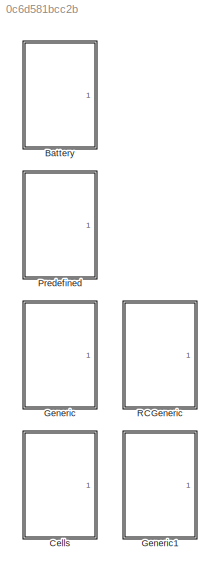
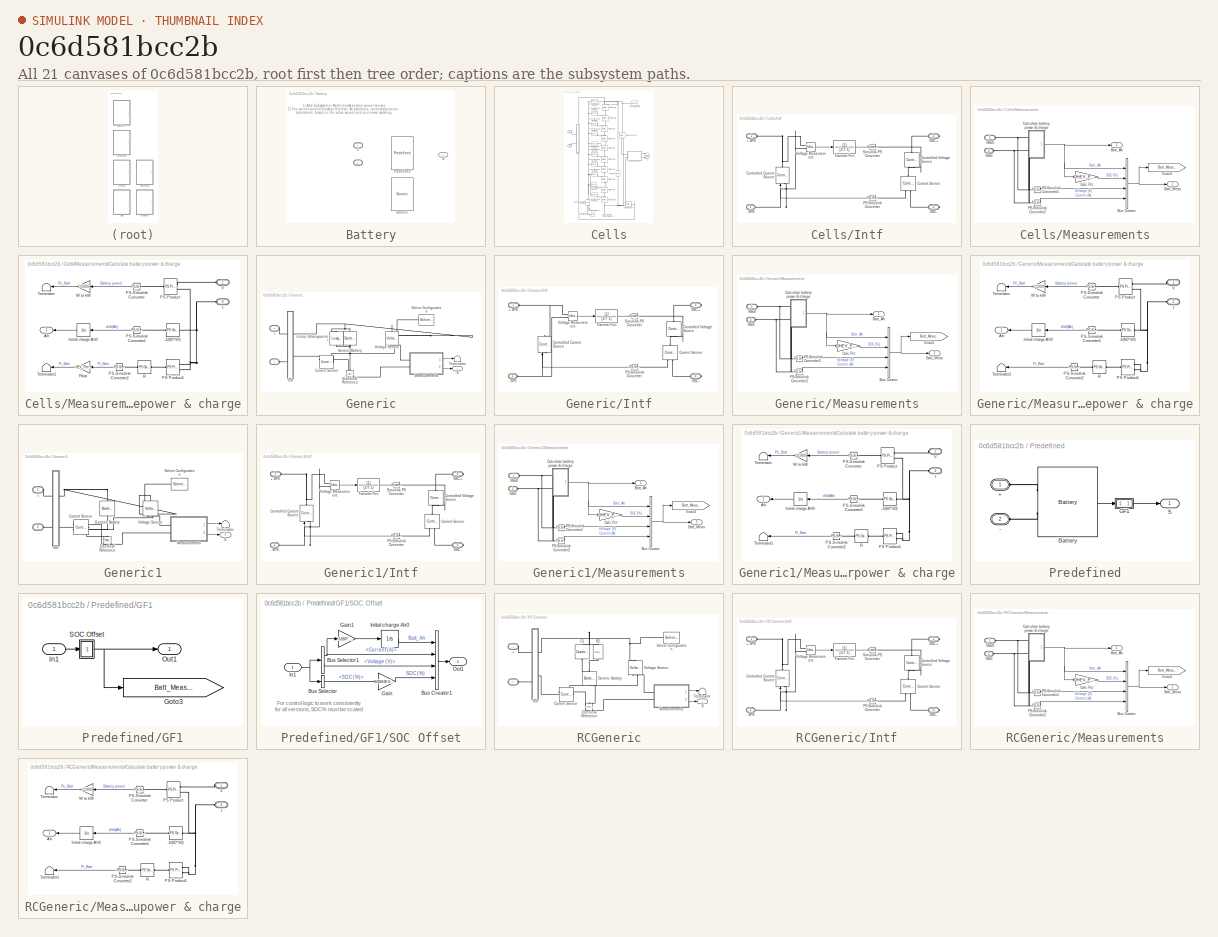
[diagram: thumbnail index - all 21 canvases of the model, root first then tree order]
MODEL slx_0c6d581bcc2b
KIND library
CONFIG AbsTol = auto
CONFIG EnableMultiTasking = on
CONFIG FixedStep = auto
CONFIG MaxStep = auto
CONFIG MinStep = auto
CONFIG RelTol = 1e-3
CONFIG SampleTimeConstraint = Unconstrained
CONFIG Solver = ode45
CONFIG SolverName = ode45
CONFIG StartTime = 0.0
CONFIG StopTime = 0.1
BLOCK [SubSystem] Battery
  LabelModeActiveChoice = Predefined
  Ports = [0, 1, 0, 0, 0, 2]
  RequestExecContextInheritance = off
  Variant = on
  VariantControlMode = Label
BLOCK [PMIOPort] Battery/+
  Side = Left
  Tag = PMCPort
BLOCK [PMIOPort] Battery/-
  Port = 2
  Side = Left
  Tag = PMCPort
BLOCK [Reference] Battery/Generic  REF=$bdroot/Generic
  Ports = [0, 1, 0, 0, 0, 2]
  SourceBlock = $bdroot/Generic
BLOCK [Reference] Battery/Predefined  REF=$bdroot/Predefined
  Ports = [0, 1, 0, 0, 0, 2]
  SourceBlock = $bdroot/Predefined
BLOCK [Outport] Battery/S
  VectorParamsAs1DForOutWhenUnconnected = off
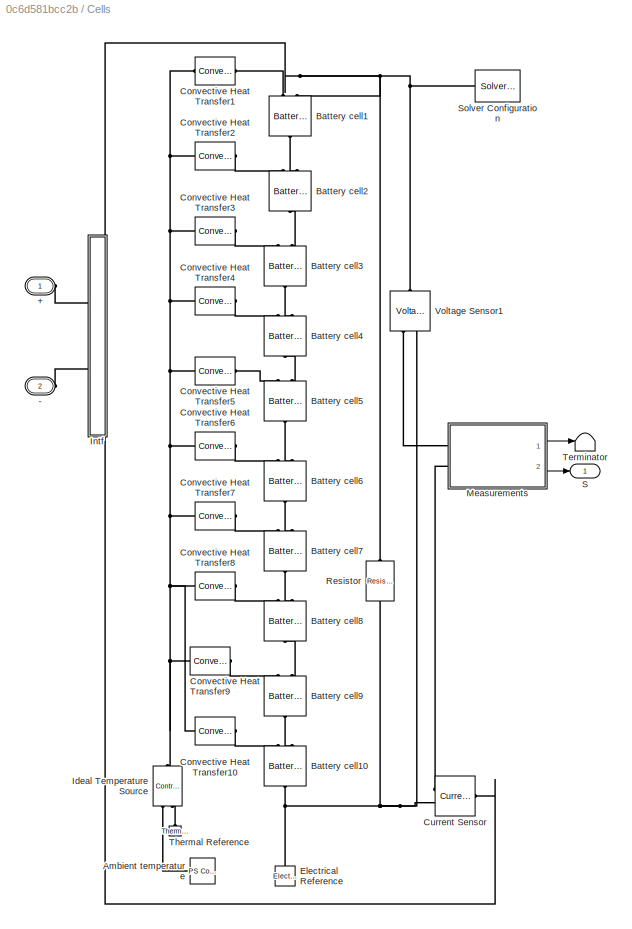
BLOCK [SubSystem] Cells
  Ports = [0, 1, 0, 0, 0, 2]
  RequestExecContextInheritance = off
BLOCK [PMIOPort] Cells/+
  Side = Left
  Tag = PMCPort
BLOCK [PMIOPort] Cells/-
  Port = 2
  Side = Left
  Tag = PMCPort
BLOCK [Reference] Cells/Ambient temperature  REF=fl_lib/Physical Signals/Sources/PS Constant
  Ports = [0, 0, 0, 0, 0, 0, 1]
  SourceBlock = fl_lib/Physical Signals/Sources/PS Constant
  SourceProductBaseCode = SS
  SourceType = PS Constant
BLOCK [Reference] Cells/Battery cell1  REF=Battery_Cell_Det/Battery
cell1
  NameLocation = right
  Ports = [0, 0, 0, 0, 0, 2, 1]
  SourceBlock = Battery_Cell_Det/Battery\ncell1
BLOCK [Reference] Cells/Battery cell10  REF=Battery_Cell_Det/Battery
cell1
  NameLocation = right
  Ports = [0, 0, 0, 0, 0, 2, 1]
  SourceBlock = Battery_Cell_Det/Battery\ncell1
BLOCK [Reference] Cells/Battery cell2  REF=Battery_Cell_Det/Battery
cell1
  NameLocation = right
  Ports = [0, 0, 0, 0, 0, 2, 1]
  SourceBlock = Battery_Cell_Det/Battery\ncell1
BLOCK [Reference] Cells/Battery cell3  REF=Battery_Cell_Det/Battery
cell1
  NameLocation = right
  Ports = [0, 0, 0, 0, 0, 2, 1]
  SourceBlock = Battery_Cell_Det/Battery\ncell1
BLOCK [Reference] Cells/Battery cell4  REF=Battery_Cell_Det/Battery
cell1
  NameLocation = right
  Ports = [0, 0, 0, 0, 0, 2, 1]
  SourceBlock = Battery_Cell_Det/Battery\ncell1
BLOCK [Reference] Cells/Battery cell5  REF=Battery_Cell_Det/Battery
cell1
  NameLocation = right
  Ports = [0, 0, 0, 0, 0, 2, 1]
  SourceBlock = Battery_Cell_Det/Battery\ncell1
BLOCK [Reference] Cells/Battery cell6  REF=Battery_Cell_Det/Battery
cell1
  NameLocation = right
  Ports = [0, 0, 0, 0, 0, 2, 1]
  SourceBlock = Battery_Cell_Det/Battery\ncell1
BLOCK [Reference] Cells/Battery cell7  REF=Battery_Cell_Det/Battery
cell1
  NameLocation = right
  Ports = [0, 0, 0, 0, 0, 2, 1]
  SourceBlock = Battery_Cell_Det/Battery\ncell1
BLOCK [Reference] Cells/Battery cell8  REF=Battery_Cell_Det/Battery
cell1
  NameLocation = right
  Ports = [0, 0, 0, 0, 0, 2, 1]
  SourceBlock = Battery_Cell_Det/Battery\ncell1
BLOCK [Reference] Cells/Battery cell9  REF=Battery_Cell_Det/Battery
cell1
  NameLocation = right
  Ports = [0, 0, 0, 0, 0, 2, 1]
  SourceBlock = Battery_Cell_Det/Battery\ncell1
BLOCK [Reference] Cells/Convective Heat Transfer1  REF=fl_lib/Thermal/Thermal Elements/Convective Heat
Transfer
  NameLocation = top
  Ports = [0, 0, 0, 0, 0, 1, 1]
  SourceBlock = fl_lib/Thermal/Thermal Elements/Convective Heat\nTransfer
  SourceProductBaseCode = SS
  SourceType = Convective Heat\nTransfer
BLOCK [Reference] Cells/Convective Heat Transfer10  REF=fl_lib/Thermal/Thermal Elements/Convective Heat
Transfer
  NameLocation = top
  Ports = [0, 0, 0, 0, 0, 1, 1]
  SourceBlock = fl_lib/Thermal/Thermal Elements/Convective Heat\nTransfer
  SourceProductBaseCode = SS
  SourceType = Convective Heat\nTransfer
BLOCK [Reference] Cells/Convective Heat Transfer2  REF=fl_lib/Thermal/Thermal Elements/Convective Heat
Transfer
  NameLocation = top
  Ports = [0, 0, 0, 0, 0, 1, 1]
  SourceBlock = fl_lib/Thermal/Thermal Elements/Convective Heat\nTransfer
  SourceProductBaseCode = SS
  SourceType = Convective Heat\nTransfer
BLOCK [Reference] Cells/Convective Heat Transfer3  REF=fl_lib/Thermal/Thermal Elements/Convective Heat
Transfer
  NameLocation = top
  Ports = [0, 0, 0, 0, 0, 1, 1]
  SourceBlock = fl_lib/Thermal/Thermal Elements/Convective Heat\nTransfer
  SourceProductBaseCode = SS
  SourceType = Convective Heat\nTransfer
BLOCK [Reference] Cells/Convective Heat Transfer4  REF=fl_lib/Thermal/Thermal Elements/Convective Heat
Transfer
  NameLocation = top
  Ports = [0, 0, 0, 0, 0, 1, 1]
  SourceBlock = fl_lib/Thermal/Thermal Elements/Convective Heat\nTransfer
  SourceProductBaseCode = SS
  SourceType = Convective Heat\nTransfer
BLOCK [Reference] Cells/Convective Heat Transfer5  REF=fl_lib/Thermal/Thermal Elements/Convective Heat
Transfer
  NameLocation = top
  Ports = [0, 0, 0, 0, 0, 1, 1]
  SourceBlock = fl_lib/Thermal/Thermal Elements/Convective Heat\nTransfer
  SourceProductBaseCode = SS
  SourceType = Convective Heat\nTransfer
BLOCK [Reference] Cells/Convective Heat Transfer6  REF=fl_lib/Thermal/Thermal Elements/Convective Heat
Transfer
  NameLocation = top
  Ports = [0, 0, 0, 0, 0, 1, 1]
  SourceBlock = fl_lib/Thermal/Thermal Elements/Convective Heat\nTransfer
  SourceProductBaseCode = SS
  SourceType = Convective Heat\nTransfer
BLOCK [Reference] Cells/Convective Heat Transfer7  REF=fl_lib/Thermal/Thermal Elements/Convective Heat
Transfer
  NameLocation = top
  Ports = [0, 0, 0, 0, 0, 1, 1]
  SourceBlock = fl_lib/Thermal/Thermal Elements/Convective Heat\nTransfer
  SourceProductBaseCode = SS
  SourceType = Convective Heat\nTransfer
BLOCK [Reference] Cells/Convective Heat Transfer8  REF=fl_lib/Thermal/Thermal Elements/Convective Heat
Transfer
  NameLocation = top
  Ports = [0, 0, 0, 0, 0, 1, 1]
  SourceBlock = fl_lib/Thermal/Thermal Elements/Convective Heat\nTransfer
  SourceProductBaseCode = SS
  SourceType = Convective Heat\nTransfer
BLOCK [Reference] Cells/Convective Heat Transfer9  REF=fl_lib/Thermal/Thermal Elements/Convective Heat
Transfer
  NameLocation = top
  Ports = [0, 0, 0, 0, 0, 1, 1]
  SourceBlock = fl_lib/Thermal/Thermal Elements/Convective Heat\nTransfer
  SourceProductBaseCode = SS
  SourceType = Convective Heat\nTransfer
BLOCK [Reference] Cells/Current Sensor  REF=fl_lib/Electrical/Electrical Sensors/Current Sensor
  Ports = [0, 0, 0, 0, 0, 1, 2]
  SourceBlock = fl_lib/Electrical/Electrical Sensors/Current Sensor
  SourceProductBaseCode = SS
  SourceType = Current Sensor
BLOCK [Reference] Cells/Electrical Reference  REF=fl_lib/Electrical/Electrical Elements/Electrical Reference
  NameLocation = right
  Ports = [0, 0, 0, 0, 0, 1]
  SourceBlock = fl_lib/Electrical/Electrical Elements/Electrical Reference
  SourceProductBaseCode = SS
  SourceType = Electrical Reference
BLOCK [Reference] Cells/Ideal Temperature Source  REF=fl_lib/Thermal/Thermal Sources/Controlled
Temperature Source
  NameLocation = left
  Ports = [0, 0, 0, 0, 0, 1, 2]
  SourceBlock = fl_lib/Thermal/Thermal Sources/Controlled\nTemperature Source
  SourceProductBaseCode = SS
  SourceType = Controlled\nTemperature Source
BLOCK [SubSystem] Cells/Intf
  Ports = [0, 0, 0, 0, 0, 2, 2]
  RequestExecContextInheritance = off
BLOCK [PMIOPort] Cells/Intf/+ SPS
  Side = Left
BLOCK [PMIOPort] Cells/Intf/- SPS
  Port = 2
  Side = Left
BLOCK [Reference] Cells/Intf/Controlled Current Source  REF=powerlib/Electrical
Sources/Controlled Current Source
  NameLocation = left
  Ports = [1, 0, 0, 0, 0, 1, 1]
  SourceBlock = powerlib/Electrical\nSources/Controlled Current Source
  SourceProductBaseCode = PS
  SourceType = Controlled Current Source
BLOCK [Reference] Cells/Intf/Controlled Voltage Source  REF=fl_lib/Electrical/Electrical Sources/Controlled Voltage
Source
  NameLocation = left
  Ports = [0, 0, 0, 0, 0, 1, 2]
  SourceBlock = fl_lib/Electrical/Electrical Sources/Controlled Voltage\nSource
  SourceProductBaseCode = SS
  SourceType = Controlled Voltage\nSource
BLOCK [Reference] Cells/Intf/Current Sensor  REF=fl_lib/Electrical/Electrical Sensors/Current Sensor
  NameLocation = left
  Ports = [0, 0, 0, 0, 0, 1, 2]
  SourceBlock = fl_lib/Electrical/Electrical Sensors/Current Sensor
  SourceProductBaseCode = SS
  SourceType = Current Sensor
BLOCK [Reference] Cells/Intf/PS-Simulink Converter  REF=nesl_utility/PS-Simulink
Converter
  Ports = [0, 1, 0, 0, 0, 1]
  SourceBlock = nesl_utility/PS-Simulink\nConverter
  SourceProductBaseCode = SS
  SourceType = PS-Simulink\nConverter
BLOCK [PMIOPort] Cells/Intf/SSC +
  Port = 3
  Side = Right
BLOCK [PMIOPort] Cells/Intf/SSC -
  Port = 4
  Side = Right
BLOCK [Reference] Cells/Intf/Simulink-PS Converter  REF=nesl_utility/Simulink-PS
Converter
  Ports = [1, 0, 0, 0, 0, 0, 1]
  SourceBlock = nesl_utility/Simulink-PS\nConverter
  SourceProductBaseCode = SS
  SourceType = Simulink-PS\nConverter
BLOCK [TransferFcn] Cells/Intf/Transfer Fcn
  Denominator = [1/T 1]
BLOCK [Reference] Cells/Intf/Voltage Measurement  REF=powerlib/Measurements/Voltage Measurement
  Ports = [0, 1, 0, 0, 0, 2]
  SourceBlock = powerlib/Measurements/Voltage Measurement
  SourceProductBaseCode = PS
  SourceType = Voltage Measurement
BLOCK [SubSystem] Cells/Measurements
  Ports = [0, 2, 0, 0, 0, 2]
  RequestExecContextInheritance = off
BLOCK [Outport] Cells/Measurements/Batt_Ah
  NameLocation = top
  VectorParamsAs1DForOutWhenUnconnected = off
BLOCK [Outport] Cells/Measurements/Batt_Meas
  NameLocation = top
  Port = 2
  VectorParamsAs1DForOutWhenUnconnected = off
BLOCK [BusCreator] Cells/Measurements/Bus Creator
  DisplayOption = bar
  InheritFromInputs = on
  Inputs = 4
  Ports = [4, 1]
BLOCK [Gain] Cells/Measurements/Calc Pct
  Gain = 1/HEV_Param.Battery_Sys.Maximum_Capacity*100
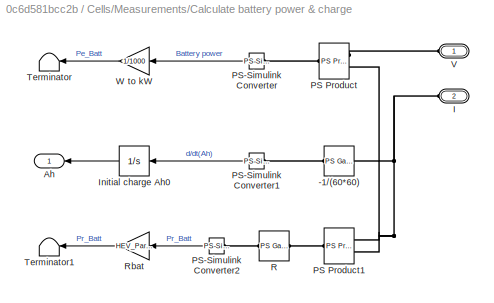
BLOCK [SubSystem] Cells/Measurements/Calculate battery power & charge
  NameLocation = top
  Ports = [0, 1, 0, 0, 0, 2]
  RequestExecContextInheritance = off
BLOCK [Reference] Cells/Measurements/Calculate battery power & charge/-1//(60*60)  REF=fl_lib/Physical Signals/Functions/PS Gain
  Ports = [0, 0, 0, 0, 0, 1, 1]
  SourceBlock = fl_lib/Physical Signals/Functions/PS Gain
  SourceProductBaseCode = SS
  SourceType = PS Gain
BLOCK [Outport] Cells/Measurements/Calculate battery power & charge/Ah
  VectorParamsAs1DForOutWhenUnconnected = off
BLOCK [PMIOPort] Cells/Measurements/Calculate battery power & charge/I
  Port = 2
  Side = Left
BLOCK [Integrator] Cells/Measurements/Calculate battery power & charge/Initial charge Ah0
  InitialCondition = HEV_Param.Battery_Sys.Maximum_Capacity
  Ports = [1, 1]
BLOCK [Reference] Cells/Measurements/Calculate battery power & charge/PS Product  REF=fl_lib/Physical Signals/Functions/PS Product
  Ports = [0, 0, 0, 0, 0, 2, 1]
  SourceBlock = fl_lib/Physical Signals/Functions/PS Product
  SourceProductBaseCode = SS
  SourceType = PS Product
BLOCK [Reference] Cells/Measurements/Calculate battery power & charge/PS Product1  REF=fl_lib/Physical Signals/Functions/PS Product
  Ports = [0, 0, 0, 0, 0, 2, 1]
  SourceBlock = fl_lib/Physical Signals/Functions/PS Product
  SourceProductBaseCode = SS
  SourceType = PS Product
BLOCK [Reference] Cells/Measurements/Calculate battery power & charge/PS-Simulink Converter  REF=nesl_utility/PS-Simulink
Converter
  Ports = [0, 1, 0, 0, 0, 1]
  SourceBlock = nesl_utility/PS-Simulink\nConverter
  SourceProductBaseCode = SS
  SourceType = PS-Simulink\nConverter
BLOCK [Reference] Cells/Measurements/Calculate battery power & charge/PS-Simulink Converter1  REF=nesl_utility/PS-Simulink
Converter
  Ports = [0, 1, 0, 0, 0, 1]
  SourceBlock = nesl_utility/PS-Simulink\nConverter
  SourceProductBaseCode = SS
  SourceType = PS-Simulink\nConverter
BLOCK [Reference] Cells/Measurements/Calculate battery power & charge/PS-Simulink Converter2  REF=nesl_utility/PS-Simulink
Converter
  Ports = [0, 1, 0, 0, 0, 1]
  SourceBlock = nesl_utility/PS-Simulink\nConverter
  SourceProductBaseCode = SS
  SourceType = PS-Simulink\nConverter
BLOCK [Reference] Cells/Measurements/Calculate battery power & charge/R  REF=fl_lib/Physical Signals/Functions/PS Gain
  Ports = [0, 0, 0, 0, 0, 1, 1]
  SourceBlock = fl_lib/Physical Signals/Functions/PS Gain
  SourceProductBaseCode = SS
  SourceType = PS Gain
BLOCK [Gain] Cells/Measurements/Calculate battery power & charge/Rbat
  Gain = HEV_Param.Battery_Sys.Internal_Resistance
BLOCK [Terminator] Cells/Measurements/Calculate battery power & charge/Terminator
  NameLocation = top
BLOCK [Terminator] Cells/Measurements/Calculate battery power & charge/Terminator1
  NameLocation = top
BLOCK [PMIOPort] Cells/Measurements/Calculate battery power & charge/V
  Side = Left
BLOCK [Gain] Cells/Measurements/Calculate battery power & charge/W to kW
  Gain = 1/1000
BLOCK [Goto] Cells/Measurements/Goto3
  GotoTag = Batt_Measures
  NameLocation = top
  TagVisibility = global
BLOCK [PMIOPort] Cells/Measurements/IBatt
  Port = 2
  Side = Left
BLOCK [Reference] Cells/Measurements/PS-Simulink Converter1  REF=nesl_utility/PS-Simulink
Converter
  NameLocation = top
  Ports = [0, 1, 0, 0, 0, 1]
  SourceBlock = nesl_utility/PS-Simulink\nConverter
  SourceProductBaseCode = SS
  SourceType = PS-Simulink\nConverter
BLOCK [Reference] Cells/Measurements/PS-Simulink Converter2  REF=nesl_utility/PS-Simulink
Converter
  NameLocation = top
  Ports = [0, 1, 0, 0, 0, 1]
  SourceBlock = nesl_utility/PS-Simulink\nConverter
  SourceProductBaseCode = SS
  SourceType = PS-Simulink\nConverter
BLOCK [PMIOPort] Cells/Measurements/VBatt
  Side = Left
BLOCK [Reference] Cells/Resistor  REF=fl_lib/Electrical/Electrical Elements/Resistor
  NameLocation = left
  Ports = [0, 0, 0, 0, 0, 1, 1]
  SourceBlock = fl_lib/Electrical/Electrical Elements/Resistor
  SourceProductBaseCode = SS
  SourceType = Resistor
BLOCK [Outport] Cells/S
  VectorParamsAs1DForOutWhenUnconnected = off
BLOCK [Reference] Cells/Solver Configuration  REF=nesl_utility/Solver
Configuration
  NameLocation = top
  Ports = [0, 0, 0, 0, 0, 0, 1]
  SourceBlock = nesl_utility/Solver\nConfiguration
  SourceProductBaseCode = SS
  SourceType = Solver\nConfiguration
BLOCK [Terminator] Cells/Terminator
BLOCK [Reference] Cells/Thermal Reference  REF=fl_lib/Thermal/Thermal Elements/Thermal Reference
  NameLocation = right
  Ports = [0, 0, 0, 0, 0, 1]
  SourceBlock = fl_lib/Thermal/Thermal Elements/Thermal Reference
  SourceProductBaseCode = SS
  SourceType = Thermal Reference
BLOCK [Reference] Cells/Voltage Sensor1  REF=fl_lib/Electrical/Electrical Sensors/Voltage Sensor
  NameLocation = right
  Ports = [0, 0, 0, 0, 0, 1, 2]
  SourceBlock = fl_lib/Electrical/Electrical Sensors/Voltage Sensor
  SourceProductBaseCode = SS
  SourceType = Voltage Sensor
BLOCK [SubSystem] Generic
  Ports = [0, 1, 0, 0, 0, 2]
  RequestExecContextInheritance = off
BLOCK [PMIOPort] Generic/+
  Side = Left
  Tag = PMCPort
BLOCK [PMIOPort] Generic/-
  Port = 2
  Side = Left
  Tag = PMCPort
BLOCK [Reference] Generic/Current Sensor  REF=fl_lib/Electrical/Electrical Sensors/Current Sensor
  Ports = [0, 0, 0, 0, 0, 1, 2]
  SourceBlock = fl_lib/Electrical/Electrical Sensors/Current Sensor
  SourceProductBaseCode = SS
  SourceType = Current Sensor
BLOCK [Reference] Generic/Electrical Reference  REF=fl_lib/Electrical/Electrical Elements/Electrical Reference
  NameLocation = right
  Ports = [0, 0, 0, 0, 0, 1]
  SourceBlock = fl_lib/Electrical/Electrical Elements/Electrical Reference
  SourceProductBaseCode = SS
  SourceType = Electrical Reference
BLOCK [Reference] Generic/Generic Battery  REF=ee_lib/Sources/Battery
  NameLocation = right
  Ports = [0, 0, 0, 0, 0, 1, 1]
  SourceBlock = ee_lib/Sources/Battery
  SourceProductBaseCode = PS
  SourceType = Battery
BLOCK [SubSystem] Generic/Intf
  Ports = [0, 0, 0, 0, 0, 2, 2]
  RequestExecContextInheritance = off
BLOCK [PMIOPort] Generic/Intf/+ SPS
  Side = Left
BLOCK [PMIOPort] Generic/Intf/- SPS
  Port = 2
  Side = Left
BLOCK [Reference] Generic/Intf/Controlled Current Source  REF=powerlib/Electrical
Sources/Controlled Current Source
  NameLocation = left
  Ports = [1, 0, 0, 0, 0, 1, 1]
  SourceBlock = powerlib/Electrical\nSources/Controlled Current Source
  SourceProductBaseCode = PS
  SourceType = Controlled Current Source
BLOCK [Reference] Generic/Intf/Controlled Voltage Source  REF=fl_lib/Electrical/Electrical Sources/Controlled Voltage
Source
  NameLocation = left
  Ports = [0, 0, 0, 0, 0, 1, 2]
  SourceBlock = fl_lib/Electrical/Electrical Sources/Controlled Voltage\nSource
  SourceProductBaseCode = SS
  SourceType = Controlled Voltage\nSource
BLOCK [Reference] Generic/Intf/Current Sensor  REF=fl_lib/Electrical/Electrical Sensors/Current Sensor
  NameLocation = left
  Ports = [0, 0, 0, 0, 0, 1, 2]
  SourceBlock = fl_lib/Electrical/Electrical Sensors/Current Sensor
  SourceProductBaseCode = SS
  SourceType = Current Sensor
BLOCK [Reference] Generic/Intf/PS-Simulink Converter  REF=nesl_utility/PS-Simulink
Converter
  Ports = [0, 1, 0, 0, 0, 1]
  SourceBlock = nesl_utility/PS-Simulink\nConverter
  SourceProductBaseCode = SS
  SourceType = PS-Simulink\nConverter
BLOCK [PMIOPort] Generic/Intf/SSC +
  Port = 3
  Side = Right
BLOCK [PMIOPort] Generic/Intf/SSC -
  Port = 4
  Side = Right
BLOCK [Reference] Generic/Intf/Simulink-PS Converter  REF=nesl_utility/Simulink-PS
Converter
  Ports = [1, 0, 0, 0, 0, 0, 1]
  SourceBlock = nesl_utility/Simulink-PS\nConverter
  SourceProductBaseCode = SS
  SourceType = Simulink-PS\nConverter
BLOCK [TransferFcn] Generic/Intf/Transfer Fcn
  Denominator = [1/T 1]
BLOCK [Reference] Generic/Intf/Voltage Measurement  REF=powerlib/Measurements/Voltage Measurement
  Ports = [0, 1, 0, 0, 0, 2]
  SourceBlock = powerlib/Measurements/Voltage Measurement
  SourceProductBaseCode = PS
  SourceType = Voltage Measurement
BLOCK [Reference] Generic/Lossy Ultracapacitor  REF=Capacitors_lib/Lossy Ultracapacitor
  NameLocation = left
  Ports = [0, 0, 0, 0, 0, 1, 1]
  SourceBlock = Capacitors_lib/Lossy Ultracapacitor
  SourceProductBaseCode = SS
  SourceType = Lossy Ultracapacitor
BLOCK [SubSystem] Generic/Measurements
  Ports = [0, 2, 0, 0, 0, 2]
  RequestExecContextInheritance = off
BLOCK [Outport] Generic/Measurements/Batt_Ah
  NameLocation = top
  VectorParamsAs1DForOutWhenUnconnected = off
BLOCK [Outport] Generic/Measurements/Batt_Meas
  NameLocation = top
  Port = 2
  VectorParamsAs1DForOutWhenUnconnected = off
BLOCK [BusCreator] Generic/Measurements/Bus Creator
  DisplayOption = bar
  InheritFromInputs = on
  Inputs = 4
  Ports = [4, 1]
BLOCK [Gain] Generic/Measurements/Calc Pct
  Gain = 1/HEV_Param.Battery_Sys.Maximum_Capacity*100
BLOCK [SubSystem] Generic/Measurements/Calculate battery power & charge
  NameLocation = top
  Ports = [0, 1, 0, 0, 0, 2]
  RequestExecContextInheritance = off
BLOCK [Reference] Generic/Measurements/Calculate battery power & charge/-1//(60*60)  REF=fl_lib/Physical Signals/Functions/PS Gain
  Ports = [0, 0, 0, 0, 0, 1, 1]
  SourceBlock = fl_lib/Physical Signals/Functions/PS Gain
  SourceProductBaseCode = SS
  SourceType = PS Gain
BLOCK [Outport] Generic/Measurements/Calculate battery power & charge/Ah
  VectorParamsAs1DForOutWhenUnconnected = off
BLOCK [PMIOPort] Generic/Measurements/Calculate battery power & charge/I
  Port = 2
  Side = Left
BLOCK [Integrator] Generic/Measurements/Calculate battery power & charge/Initial charge Ah0
  InitialCondition = HEV_Param.Battery_Sys.Maximum_Capacity
  Ports = [1, 1]
BLOCK [Reference] Generic/Measurements/Calculate battery power & charge/PS Product  REF=fl_lib/Physical Signals/Functions/PS Product
  Ports = [0, 0, 0, 0, 0, 2, 1]
  SourceBlock = fl_lib/Physical Signals/Functions/PS Product
  SourceProductBaseCode = SS
  SourceType = PS Product
BLOCK [Reference] Generic/Measurements/Calculate battery power & charge/PS Product1  REF=fl_lib/Physical Signals/Functions/PS Product
  Ports = [0, 0, 0, 0, 0, 2, 1]
  SourceBlock = fl_lib/Physical Signals/Functions/PS Product
  SourceProductBaseCode = SS
  SourceType = PS Product
BLOCK [Reference] Generic/Measurements/Calculate battery power & charge/PS-Simulink Converter  REF=nesl_utility/PS-Simulink
Converter
  Ports = [0, 1, 0, 0, 0, 1]
  SourceBlock = nesl_utility/PS-Simulink\nConverter
  SourceProductBaseCode = SS
  SourceType = PS-Simulink\nConverter
BLOCK [Reference] Generic/Measurements/Calculate battery power & charge/PS-Simulink Converter1  REF=nesl_utility/PS-Simulink
Converter
  Ports = [0, 1, 0, 0, 0, 1]
  SourceBlock = nesl_utility/PS-Simulink\nConverter
  SourceProductBaseCode = SS
  SourceType = PS-Simulink\nConverter
BLOCK [Reference] Generic/Measurements/Calculate battery power & charge/PS-Simulink Converter2  REF=nesl_utility/PS-Simulink
Converter
  Ports = [0, 1, 0, 0, 0, 1]
  SourceBlock = nesl_utility/PS-Simulink\nConverter
  SourceProductBaseCode = SS
  SourceType = PS-Simulink\nConverter
BLOCK [Reference] Generic/Measurements/Calculate battery power & charge/R  REF=fl_lib/Physical Signals/Functions/PS Gain
  Ports = [0, 0, 0, 0, 0, 1, 1]
  SourceBlock = fl_lib/Physical Signals/Functions/PS Gain
  SourceProductBaseCode = SS
  SourceType = PS Gain
BLOCK [Terminator] Generic/Measurements/Calculate battery power & charge/Terminator
  NameLocation = top
BLOCK [Terminator] Generic/Measurements/Calculate battery power & charge/Terminator1
  NameLocation = top
BLOCK [PMIOPort] Generic/Measurements/Calculate battery power & charge/V
  Side = Left
BLOCK [Gain] Generic/Measurements/Calculate battery power & charge/W to kW
  Gain = 1/1000
BLOCK [Goto] Generic/Measurements/Goto3
  GotoTag = Batt_Measures
  NameLocation = top
  TagVisibility = global
BLOCK [PMIOPort] Generic/Measurements/IBatt
  Port = 2
  Side = Left
BLOCK [Reference] Generic/Measurements/PS-Simulink Converter1  REF=nesl_utility/PS-Simulink
Converter
  NameLocation = top
  Ports = [0, 1, 0, 0, 0, 1]
  SourceBlock = nesl_utility/PS-Simulink\nConverter
  SourceProductBaseCode = SS
  SourceType = PS-Simulink\nConverter
BLOCK [Reference] Generic/Measurements/PS-Simulink Converter2  REF=nesl_utility/PS-Simulink
Converter
  NameLocation = top
  Ports = [0, 1, 0, 0, 0, 1]
  SourceBlock = nesl_utility/PS-Simulink\nConverter
  SourceProductBaseCode = SS
  SourceType = PS-Simulink\nConverter
BLOCK [PMIOPort] Generic/Measurements/VBatt
  Side = Left
BLOCK [Outport] Generic/S
  VectorParamsAs1DForOutWhenUnconnected = off
BLOCK [Reference] Generic/Solver Configuration  REF=nesl_utility/Solver
Configuration
  NameLocation = top
  Ports = [0, 0, 0, 0, 0, 0, 1]
  SourceBlock = nesl_utility/Solver\nConfiguration
  SourceProductBaseCode = SS
  SourceType = Solver\nConfiguration
BLOCK [Terminator] Generic/Terminator
BLOCK [Reference] Generic/Voltage Sensor  REF=fl_lib/Electrical/Electrical Sensors/Voltage Sensor
  NameLocation = right
  Ports = [0, 0, 0, 0, 0, 1, 2]
  SourceBlock = fl_lib/Electrical/Electrical Sensors/Voltage Sensor
  SourceProductBaseCode = SS
  SourceType = Voltage Sensor
BLOCK [SubSystem] Generic1
  Ports = [0, 1, 0, 0, 0, 2]
  RequestExecContextInheritance = off
BLOCK [PMIOPort] Generic1/+
  Side = Left
  Tag = PMCPort
BLOCK [PMIOPort] Generic1/-
  Port = 2
  Side = Left
  Tag = PMCPort
BLOCK [Reference] Generic1/Current Sensor  REF=fl_lib/Electrical/Electrical Sensors/Current Sensor
  Ports = [0, 0, 0, 0, 0, 1, 2]
  SourceBlock = fl_lib/Electrical/Electrical Sensors/Current Sensor
  SourceProductBaseCode = SS
  SourceType = Current Sensor
BLOCK [Reference] Generic1/Electrical Reference  REF=fl_lib/Electrical/Electrical Elements/Electrical Reference
  NameLocation = right
  Ports = [0, 0, 0, 0, 0, 1]
  SourceBlock = fl_lib/Electrical/Electrical Elements/Electrical Reference
  SourceProductBaseCode = SS
  SourceType = Electrical Reference
BLOCK [Reference] Generic1/Generic Battery  REF=ee_lib/Sources/Battery
  NameLocation = right
  Ports = [0, 0, 0, 0, 0, 1, 1]
  SourceBlock = ee_lib/Sources/Battery
  SourceProductBaseCode = PS
  SourceType = Battery
BLOCK [SubSystem] Generic1/Intf
  Ports = [0, 0, 0, 0, 0, 2, 2]
  RequestExecContextInheritance = off
BLOCK [PMIOPort] Generic1/Intf/+ SPS
  Side = Left
BLOCK [PMIOPort] Generic1/Intf/- SPS
  Port = 2
  Side = Left
BLOCK [Reference] Generic1/Intf/Controlled Current Source  REF=powerlib/Electrical
Sources/Controlled Current Source
  NameLocation = left
  Ports = [1, 0, 0, 0, 0, 1, 1]
  SourceBlock = powerlib/Electrical\nSources/Controlled Current Source
  SourceProductBaseCode = PS
  SourceType = Controlled Current Source
BLOCK [Reference] Generic1/Intf/Controlled Voltage Source  REF=fl_lib/Electrical/Electrical Sources/Controlled Voltage
Source
  NameLocation = left
  Ports = [0, 0, 0, 0, 0, 1, 2]
  SourceBlock = fl_lib/Electrical/Electrical Sources/Controlled Voltage\nSource
  SourceProductBaseCode = SS
  SourceType = Controlled Voltage\nSource
BLOCK [Reference] Generic1/Intf/Current Sensor  REF=fl_lib/Electrical/Electrical Sensors/Current Sensor
  NameLocation = left
  Ports = [0, 0, 0, 0, 0, 1, 2]
  SourceBlock = fl_lib/Electrical/Electrical Sensors/Current Sensor
  SourceProductBaseCode = SS
  SourceType = Current Sensor
BLOCK [Reference] Generic1/Intf/PS-Simulink Converter  REF=nesl_utility/PS-Simulink
Converter
  Ports = [0, 1, 0, 0, 0, 1]
  SourceBlock = nesl_utility/PS-Simulink\nConverter
  SourceProductBaseCode = SS
  SourceType = PS-Simulink\nConverter
BLOCK [PMIOPort] Generic1/Intf/SSC +
  Port = 3
  Side = Right
BLOCK [PMIOPort] Generic1/Intf/SSC -
  Port = 4
  Side = Right
BLOCK [Reference] Generic1/Intf/Simulink-PS Converter  REF=nesl_utility/Simulink-PS
Converter
  Ports = [1, 0, 0, 0, 0, 0, 1]
  SourceBlock = nesl_utility/Simulink-PS\nConverter
  SourceProductBaseCode = SS
  SourceType = Simulink-PS\nConverter
BLOCK [TransferFcn] Generic1/Intf/Transfer Fcn
  Denominator = [1/T 1]
BLOCK [Reference] Generic1/Intf/Voltage Measurement  REF=powerlib/Measurements/Voltage Measurement
  Ports = [0, 1, 0, 0, 0, 2]
  SourceBlock = powerlib/Measurements/Voltage Measurement
  SourceProductBaseCode = PS
  SourceType = Voltage Measurement
BLOCK [SubSystem] Generic1/Measurements
  Ports = [0, 2, 0, 0, 0, 2]
  RequestExecContextInheritance = off
BLOCK [Outport] Generic1/Measurements/Batt_Ah
  NameLocation = top
  VectorParamsAs1DForOutWhenUnconnected = off
BLOCK [Outport] Generic1/Measurements/Batt_Meas
  NameLocation = top
  Port = 2
  VectorParamsAs1DForOutWhenUnconnected = off
BLOCK [BusCreator] Generic1/Measurements/Bus Creator
  DisplayOption = bar
  InheritFromInputs = on
  Inputs = 4
  Ports = [4, 1]
BLOCK [Gain] Generic1/Measurements/Calc Pct
  Gain = 1/HEV_Param.Battery_Sys.Maximum_Capacity*100
BLOCK [SubSystem] Generic1/Measurements/Calculate battery power & charge
  NameLocation = top
  Ports = [0, 1, 0, 0, 0, 2]
  RequestExecContextInheritance = off
BLOCK [Reference] Generic1/Measurements/Calculate battery power & charge/-1//(60*60)  REF=fl_lib/Physical Signals/Functions/PS Gain
  Ports = [0, 0, 0, 0, 0, 1, 1]
  SourceBlock = fl_lib/Physical Signals/Functions/PS Gain
  SourceProductBaseCode = SS
  SourceType = PS Gain
BLOCK [Outport] Generic1/Measurements/Calculate battery power & charge/Ah
  VectorParamsAs1DForOutWhenUnconnected = off
BLOCK [PMIOPort] Generic1/Measurements/Calculate battery power & charge/I
  Port = 2
  Side = Left
BLOCK [Integrator] Generic1/Measurements/Calculate battery power & charge/Initial charge Ah0
  InitialCondition = HEV_Param.Battery_Sys.Maximum_Capacity
  Ports = [1, 1]
BLOCK [Reference] Generic1/Measurements/Calculate battery power & charge/PS Product  REF=fl_lib/Physical Signals/Functions/PS Product
  Ports = [0, 0, 0, 0, 0, 2, 1]
  SourceBlock = fl_lib/Physical Signals/Functions/PS Product
  SourceProductBaseCode = SS
  SourceType = PS Product
BLOCK [Reference] Generic1/Measurements/Calculate battery power & charge/PS Product1  REF=fl_lib/Physical Signals/Functions/PS Product
  Ports = [0, 0, 0, 0, 0, 2, 1]
  SourceBlock = fl_lib/Physical Signals/Functions/PS Product
  SourceProductBaseCode = SS
  SourceType = PS Product
BLOCK [Reference] Generic1/Measurements/Calculate battery power & charge/PS-Simulink Converter  REF=nesl_utility/PS-Simulink
Converter
  Ports = [0, 1, 0, 0, 0, 1]
  SourceBlock = nesl_utility/PS-Simulink\nConverter
  SourceProductBaseCode = SS
  SourceType = PS-Simulink\nConverter
BLOCK [Reference] Generic1/Measurements/Calculate battery power & charge/PS-Simulink Converter1  REF=nesl_utility/PS-Simulink
Converter
  Ports = [0, 1, 0, 0, 0, 1]
  SourceBlock = nesl_utility/PS-Simulink\nConverter
  SourceProductBaseCode = SS
  SourceType = PS-Simulink\nConverter
BLOCK [Reference] Generic1/Measurements/Calculate battery power & charge/PS-Simulink Converter2  REF=nesl_utility/PS-Simulink
Converter
  Ports = [0, 1, 0, 0, 0, 1]
  SourceBlock = nesl_utility/PS-Simulink\nConverter
  SourceProductBaseCode = SS
  SourceType = PS-Simulink\nConverter
BLOCK [Reference] Generic1/Measurements/Calculate battery power & charge/R  REF=fl_lib/Physical Signals/Functions/PS Gain
  Ports = [0, 0, 0, 0, 0, 1, 1]
  SourceBlock = fl_lib/Physical Signals/Functions/PS Gain
  SourceProductBaseCode = SS
  SourceType = PS Gain
BLOCK [Terminator] Generic1/Measurements/Calculate battery power & charge/Terminator
  NameLocation = top
BLOCK [Terminator] Generic1/Measurements/Calculate battery power & charge/Terminator1
  NameLocation = top
BLOCK [PMIOPort] Generic1/Measurements/Calculate battery power & charge/V
  Side = Left
BLOCK [Gain] Generic1/Measurements/Calculate battery power & charge/W to kW
  Gain = 1/1000
BLOCK [Goto] Generic1/Measurements/Goto3
  GotoTag = Batt_Measures
  NameLocation = top
  TagVisibility = global
BLOCK [PMIOPort] Generic1/Measurements/IBatt
  Port = 2
  Side = Left
BLOCK [Reference] Generic1/Measurements/PS-Simulink Converter1  REF=nesl_utility/PS-Simulink
Converter
  NameLocation = top
  Ports = [0, 1, 0, 0, 0, 1]
  SourceBlock = nesl_utility/PS-Simulink\nConverter
  SourceProductBaseCode = SS
  SourceType = PS-Simulink\nConverter
BLOCK [Reference] Generic1/Measurements/PS-Simulink Converter2  REF=nesl_utility/PS-Simulink
Converter
  NameLocation = top
  Ports = [0, 1, 0, 0, 0, 1]
  SourceBlock = nesl_utility/PS-Simulink\nConverter
  SourceProductBaseCode = SS
  SourceType = PS-Simulink\nConverter
BLOCK [PMIOPort] Generic1/Measurements/VBatt
  Side = Left
BLOCK [Outport] Generic1/S
  VectorParamsAs1DForOutWhenUnconnected = off
BLOCK [Reference] Generic1/Solver Configuration  REF=nesl_utility/Solver
Configuration
  NameLocation = top
  Ports = [0, 0, 0, 0, 0, 0, 1]
  SourceBlock = nesl_utility/Solver\nConfiguration
  SourceProductBaseCode = SS
  SourceType = Solver\nConfiguration
BLOCK [Terminator] Generic1/Terminator
BLOCK [Reference] Generic1/Voltage Sensor  REF=fl_lib/Electrical/Electrical Sensors/Voltage Sensor
  NameLocation = right
  Ports = [0, 0, 0, 0, 0, 1, 2]
  SourceBlock = fl_lib/Electrical/Electrical Sensors/Voltage Sensor
  SourceProductBaseCode = SS
  SourceType = Voltage Sensor
BLOCK [SubSystem] Predefined
  Ports = [0, 1, 0, 0, 0, 2]
  RequestExecContextInheritance = off
BLOCK [PMIOPort] Predefined/+
  Side = Left
  Tag = PMCPort
BLOCK [PMIOPort] Predefined/-
  Port = 2
  Side = Left
  Tag = PMCPort
BLOCK [Reference] Predefined/Battery  REF=electricdrivelib/Extra Sources/Battery
  Ports = [0, 1, 0, 0, 0, 2]
  SourceBlock = electricdrivelib/Extra Sources/Battery
  SourceProductBaseCode = PS
  SourceType = Battery
BLOCK [SubSystem] Predefined/GF1
  Ports = [1, 1]
  RequestExecContextInheritance = off
BLOCK [Goto] Predefined/GF1/Goto3
  GotoTag = Batt_Measures
  NameLocation = top
  TagVisibility = global
BLOCK [Inport] Predefined/GF1/In1
BLOCK [Outport] Predefined/GF1/Out1
  VectorParamsAs1DForOutWhenUnconnected = off
BLOCK [SubSystem] Predefined/GF1/SOC Offset
  Ports = [1, 1]
  RequestExecContextInheritance = off
BLOCK [BusCreator] Predefined/GF1/SOC Offset/Bus Creator1
  DisplayOption = bar
  InheritFromInputs = on
  Inputs = 4
  Ports = [4, 1]
BLOCK [BusSelector] Predefined/GF1/SOC Offset/Bus Selector
  OutputSignals = SOC (%)
  Ports = [1, 1]
BLOCK [BusSelector] Predefined/GF1/SOC Offset/Bus Selector1
  OutputSignals = Current (A),Voltage (V)
  Ports = [1, 2]
BLOCK [Gain] Predefined/GF1/SOC Offset/Gain
  Gain = 100/HEV_Param.Battery_Det.Initial_SOC
BLOCK [Gain] Predefined/GF1/SOC Offset/Gain1
  Gain = -1/(60*60)
  NameLocation = top
BLOCK [Inport] Predefined/GF1/SOC Offset/In1
BLOCK [Integrator] Predefined/GF1/SOC Offset/Initial charge Ah0
  InitialCondition = HEV_Param.Battery_Det.Rated_Capacity*HEV_Param.Battery_Det.Initial_SOC/100
  NameLocation = top
  Ports = [1, 1]
BLOCK [Outport] Predefined/GF1/SOC Offset/Out1
  VectorParamsAs1DForOutWhenUnconnected = off
BLOCK [Outport] Predefined/S
  VectorParamsAs1DForOutWhenUnconnected = off
BLOCK [SubSystem] RCGeneric
  Ports = [0, 1, 0, 0, 0, 2]
  RequestExecContextInheritance = off
BLOCK [PMIOPort] RCGeneric/+
  Side = Left
  Tag = PMCPort
BLOCK [PMIOPort] RCGeneric/-
  Port = 2
  Side = Left
  Tag = PMCPort
BLOCK [Reference] RCGeneric/C1  REF=fl_lib/Electrical/Electrical Elements/Capacitor
  NameLocation = left
  Ports = [0, 0, 0, 0, 0, 1, 1]
  SourceBlock = fl_lib/Electrical/Electrical Elements/Capacitor
  SourceProductBaseCode = SS
  SourceType = Capacitor
BLOCK [Reference] RCGeneric/Current Sensor  REF=fl_lib/Electrical/Electrical Sensors/Current Sensor
  Ports = [0, 0, 0, 0, 0, 1, 2]
  SourceBlock = fl_lib/Electrical/Electrical Sensors/Current Sensor
  SourceProductBaseCode = SS
  SourceType = Current Sensor
BLOCK [Reference] RCGeneric/Electrical Reference  REF=fl_lib/Electrical/Electrical Elements/Electrical Reference
  NameLocation = right
  Ports = [0, 0, 0, 0, 0, 1]
  SourceBlock = fl_lib/Electrical/Electrical Elements/Electrical Reference
  SourceProductBaseCode = SS
  SourceType = Electrical Reference
BLOCK [Reference] RCGeneric/Generic Battery  REF=ee_lib/Sources/Battery
  NameLocation = right
  Ports = [0, 0, 0, 0, 0, 1, 1]
  SourceBlock = ee_lib/Sources/Battery
  SourceProductBaseCode = PS
  SourceType = Battery
BLOCK [SubSystem] RCGeneric/Intf
  Ports = [0, 0, 0, 0, 0, 2, 2]
  RequestExecContextInheritance = off
BLOCK [PMIOPort] RCGeneric/Intf/+ SPS
  Side = Left
BLOCK [PMIOPort] RCGeneric/Intf/- SPS
  Port = 2
  Side = Left
BLOCK [Reference] RCGeneric/Intf/Controlled Current Source  REF=powerlib/Electrical
Sources/Controlled Current Source
  NameLocation = left
  Ports = [1, 0, 0, 0, 0, 1, 1]
  SourceBlock = powerlib/Electrical\nSources/Controlled Current Source
  SourceProductBaseCode = PS
  SourceType = Controlled Current Source
BLOCK [Reference] RCGeneric/Intf/Controlled Voltage Source  REF=fl_lib/Electrical/Electrical Sources/Controlled Voltage
Source
  NameLocation = left
  Ports = [0, 0, 0, 0, 0, 1, 2]
  SourceBlock = fl_lib/Electrical/Electrical Sources/Controlled Voltage\nSource
  SourceProductBaseCode = SS
  SourceType = Controlled Voltage\nSource
BLOCK [Reference] RCGeneric/Intf/Current Sensor  REF=fl_lib/Electrical/Electrical Sensors/Current Sensor
  NameLocation = left
  Ports = [0, 0, 0, 0, 0, 1, 2]
  SourceBlock = fl_lib/Electrical/Electrical Sensors/Current Sensor
  SourceProductBaseCode = SS
  SourceType = Current Sensor
BLOCK [Reference] RCGeneric/Intf/PS-Simulink Converter  REF=nesl_utility/PS-Simulink
Converter
  Ports = [0, 1, 0, 0, 0, 1]
  SourceBlock = nesl_utility/PS-Simulink\nConverter
  SourceProductBaseCode = SS
  SourceType = PS-Simulink\nConverter
BLOCK [PMIOPort] RCGeneric/Intf/SSC +
  Port = 3
  Side = Right
BLOCK [PMIOPort] RCGeneric/Intf/SSC -
  Port = 4
  Side = Right
BLOCK [Reference] RCGeneric/Intf/Simulink-PS Converter  REF=nesl_utility/Simulink-PS
Converter
  Ports = [1, 0, 0, 0, 0, 0, 1]
  SourceBlock = nesl_utility/Simulink-PS\nConverter
  SourceProductBaseCode = SS
  SourceType = Simulink-PS\nConverter
BLOCK [TransferFcn] RCGeneric/Intf/Transfer Fcn
  Denominator = [1/T 1]
BLOCK [Reference] RCGeneric/Intf/Voltage Measurement  REF=powerlib/Measurements/Voltage Measurement
  Ports = [0, 1, 0, 0, 0, 2]
  SourceBlock = powerlib/Measurements/Voltage Measurement
  SourceProductBaseCode = PS
  SourceType = Voltage Measurement
BLOCK [SubSystem] RCGeneric/Measurements
  Ports = [0, 2, 0, 0, 0, 2]
  RequestExecContextInheritance = off
BLOCK [Outport] RCGeneric/Measurements/Batt_Ah
  NameLocation = top
  VectorParamsAs1DForOutWhenUnconnected = off
BLOCK [Outport] RCGeneric/Measurements/Batt_Meas
  NameLocation = top
  Port = 2
  VectorParamsAs1DForOutWhenUnconnected = off
BLOCK [BusCreator] RCGeneric/Measurements/Bus Creator
  DisplayOption = bar
  InheritFromInputs = on
  Inputs = 4
  Ports = [4, 1]
BLOCK [Gain] RCGeneric/Measurements/Calc Pct
  Gain = 1/HEV_Param.Battery_Sys.Maximum_Capacity*100
BLOCK [SubSystem] RCGeneric/Measurements/Calculate battery power & charge
  NameLocation = top
  Ports = [0, 1, 0, 0, 0, 2]
  RequestExecContextInheritance = off
BLOCK [Reference] RCGeneric/Measurements/Calculate battery power & charge/-1//(60*60)  REF=fl_lib/Physical Signals/Functions/PS Gain
  Ports = [0, 0, 0, 0, 0, 1, 1]
  SourceBlock = fl_lib/Physical Signals/Functions/PS Gain
  SourceProductBaseCode = SS
  SourceType = PS Gain
BLOCK [Outport] RCGeneric/Measurements/Calculate battery power & charge/Ah
  VectorParamsAs1DForOutWhenUnconnected = off
BLOCK [PMIOPort] RCGeneric/Measurements/Calculate battery power & charge/I
  Port = 2
  Side = Left
BLOCK [Integrator] RCGeneric/Measurements/Calculate battery power & charge/Initial charge Ah0
  InitialCondition = HEV_Param.Battery_Sys.Maximum_Capacity
  Ports = [1, 1]
BLOCK [Reference] RCGeneric/Measurements/Calculate battery power & charge/PS Product  REF=fl_lib/Physical Signals/Functions/PS Product
  Ports = [0, 0, 0, 0, 0, 2, 1]
  SourceBlock = fl_lib/Physical Signals/Functions/PS Product
  SourceProductBaseCode = SS
  SourceType = PS Product
BLOCK [Reference] RCGeneric/Measurements/Calculate battery power & charge/PS Product1  REF=fl_lib/Physical Signals/Functions/PS Product
  Ports = [0, 0, 0, 0, 0, 2, 1]
  SourceBlock = fl_lib/Physical Signals/Functions/PS Product
  SourceProductBaseCode = SS
  SourceType = PS Product
BLOCK [Reference] RCGeneric/Measurements/Calculate battery power & charge/PS-Simulink Converter  REF=nesl_utility/PS-Simulink
Converter
  Ports = [0, 1, 0, 0, 0, 1]
  SourceBlock = nesl_utility/PS-Simulink\nConverter
  SourceProductBaseCode = SS
  SourceType = PS-Simulink\nConverter
BLOCK [Reference] RCGeneric/Measurements/Calculate battery power & charge/PS-Simulink Converter1  REF=nesl_utility/PS-Simulink
Converter
  Ports = [0, 1, 0, 0, 0, 1]
  SourceBlock = nesl_utility/PS-Simulink\nConverter
  SourceProductBaseCode = SS
  SourceType = PS-Simulink\nConverter
BLOCK [Reference] RCGeneric/Measurements/Calculate battery power & charge/PS-Simulink Converter2  REF=nesl_utility/PS-Simulink
Converter
  Ports = [0, 1, 0, 0, 0, 1]
  SourceBlock = nesl_utility/PS-Simulink\nConverter
  SourceProductBaseCode = SS
  SourceType = PS-Simulink\nConverter
BLOCK [Reference] RCGeneric/Measurements/Calculate battery power & charge/R  REF=fl_lib/Physical Signals/Functions/PS Gain
  Ports = [0, 0, 0, 0, 0, 1, 1]
  SourceBlock = fl_lib/Physical Signals/Functions/PS Gain
  SourceProductBaseCode = SS
  SourceType = PS Gain
BLOCK [Terminator] RCGeneric/Measurements/Calculate battery power & charge/Terminator
  NameLocation = top
BLOCK [Terminator] RCGeneric/Measurements/Calculate battery power & charge/Terminator1
  NameLocation = top
BLOCK [PMIOPort] RCGeneric/Measurements/Calculate battery power & charge/V
  Side = Left
BLOCK [Gain] RCGeneric/Measurements/Calculate battery power & charge/W to kW
  Gain = 1/1000
BLOCK [Goto] RCGeneric/Measurements/Goto3
  GotoTag = Batt_Measures
  NameLocation = top
  TagVisibility = global
BLOCK [PMIOPort] RCGeneric/Measurements/IBatt
  Port = 2
  Side = Left
BLOCK [Reference] RCGeneric/Measurements/PS-Simulink Converter1  REF=nesl_utility/PS-Simulink
Converter
  NameLocation = top
  Ports = [0, 1, 0, 0, 0, 1]
  SourceBlock = nesl_utility/PS-Simulink\nConverter
  SourceProductBaseCode = SS
  SourceType = PS-Simulink\nConverter
BLOCK [Reference] RCGeneric/Measurements/PS-Simulink Converter2  REF=nesl_utility/PS-Simulink
Converter
  NameLocation = top
  Ports = [0, 1, 0, 0, 0, 1]
  SourceBlock = nesl_utility/PS-Simulink\nConverter
  SourceProductBaseCode = SS
  SourceType = PS-Simulink\nConverter
BLOCK [PMIOPort] RCGeneric/Measurements/VBatt
  Side = Left
BLOCK [Reference] RCGeneric/R2  REF=fl_lib/Electrical/Electrical Elements/Resistor
  NameLocation = right
  Ports = [0, 0, 0, 0, 0, 1, 1]
  SourceBlock = fl_lib/Electrical/Electrical Elements/Resistor
  SourceProductBaseCode = SS
  SourceType = Resistor
BLOCK [Outport] RCGeneric/S
  VectorParamsAs1DForOutWhenUnconnected = off
BLOCK [Reference] RCGeneric/Solver Configuration  REF=nesl_utility/Solver
Configuration
  NameLocation = top
  Ports = [0, 0, 0, 0, 0, 0, 1]
  SourceBlock = nesl_utility/Solver\nConfiguration
  SourceProductBaseCode = SS
  SourceType = Solver\nConfiguration
BLOCK [Terminator] RCGeneric/Terminator
BLOCK [Reference] RCGeneric/Voltage Sensor  REF=fl_lib/Electrical/Electrical Sensors/Voltage Sensor
  NameLocation = right
  Ports = [0, 0, 0, 0, 0, 1, 2]
  SourceBlock = fl_lib/Electrical/Electrical Sensors/Voltage Sensor
  SourceProductBaseCode = SS
  SourceType = Voltage Sensor
ANNOTATION Battery: 1) Add Subsystem or Model blocks as valid variant choices. 2) You cannot connect blocks at this level. At simulation, connectivity is automatically determined, based on the active variant and port name matching.
ANNOTATION Predefined/GF1/SOC Offset: For control logic to work consistently for all versions, SOC% must be scaled
LINE Cells/Intf/PS-Simulink Converter:1 -> Cells/Intf/Controlled Current Source:1
LINE Cells/Intf/Transfer Fcn:1 -> Cells/Intf/Simulink-PS Converter:1
LINE Cells/Intf/Voltage Measurement:1 -> Cells/Intf/Transfer Fcn:1
NET Cells/Measurements/Bus Creator:1 -> Cells/Measurements/Batt_Meas:1, Cells/Measurements/Goto3:1
LINE Cells/Measurements/Calc Pct:1 -> Cells/Measurements/Bus Creator:2
LINE Cells/Measurements/Calculate battery power & charge/Initial charge Ah0:1 -> Cells/Measurements/Calculate battery power & charge/Ah:1
LINE Cells/Measurements/Calculate battery power & charge/PS-Simulink Converter1:1 -> Cells/Measurements/Calculate battery power & charge/Initial charge Ah0:1
LINE Cells/Measurements/Calculate battery power & charge/PS-Simulink Converter2:1 -> Cells/Measurements/Calculate battery power & charge/Rbat:1
LINE Cells/Measurements/Calculate battery power & charge/PS-Simulink Converter:1 -> Cells/Measurements/Calculate battery power & charge/W to kW:1
LINE Cells/Measurements/Calculate battery power & charge/Rbat:1 -> Cells/Measurements/Calculate battery power & charge/Terminator1:1
LINE Cells/Measurements/Calculate battery power & charge/W to kW:1 -> Cells/Measurements/Calculate battery power & charge/Terminator:1
NET Cells/Measurements/Calculate battery power & charge:1 -> Cells/Measurements/Batt_Ah:1, Cells/Measurements/Bus Creator:1, Cells/Measurements/Calc Pct:1
LINE Cells/Measurements/PS-Simulink Converter1:1 -> Cells/Measurements/Bus Creator:3
LINE Cells/Measurements/PS-Simulink Converter2:1 -> Cells/Measurements/Bus Creator:4
LINE Cells/Measurements:1 -> Cells/Terminator:1
LINE Cells/Measurements:2 -> Cells/S:1
LINE Generic/Intf/PS-Simulink Converter:1 -> Generic/Intf/Controlled Current Source:1
LINE Generic/Intf/Transfer Fcn:1 -> Generic/Intf/Simulink-PS Converter:1
LINE Generic/Intf/Voltage Measurement:1 -> Generic/Intf/Transfer Fcn:1
NET Generic/Measurements/Bus Creator:1 -> Generic/Measurements/Batt_Meas:1, Generic/Measurements/Goto3:1
LINE Generic/Measurements/Calc Pct:1 -> Generic/Measurements/Bus Creator:2
LINE Generic/Measurements/Calculate battery power & charge/Initial charge Ah0:1 -> Generic/Measurements/Calculate battery power & charge/Ah:1
LINE Generic/Measurements/Calculate battery power & charge/PS-Simulink Converter1:1 -> Generic/Measurements/Calculate battery power & charge/Initial charge Ah0:1
LINE Generic/Measurements/Calculate battery power & charge/PS-Simulink Converter2:1 -> Generic/Measurements/Calculate battery power & charge/Terminator1:1
LINE Generic/Measurements/Calculate battery power & charge/PS-Simulink Converter:1 -> Generic/Measurements/Calculate battery power & charge/W to kW:1
LINE Generic/Measurements/Calculate battery power & charge/W to kW:1 -> Generic/Measurements/Calculate battery power & charge/Terminator:1
NET Generic/Measurements/Calculate battery power & charge:1 -> Generic/Measurements/Batt_Ah:1, Generic/Measurements/Bus Creator:1, Generic/Measurements/Calc Pct:1
LINE Generic/Measurements/PS-Simulink Converter1:1 -> Generic/Measurements/Bus Creator:3
LINE Generic/Measurements/PS-Simulink Converter2:1 -> Generic/Measurements/Bus Creator:4
LINE Generic/Measurements:1 -> Generic/Terminator:1
LINE Generic/Measurements:2 -> Generic/S:1
LINE Generic1/Intf/PS-Simulink Converter:1 -> Generic1/Intf/Controlled Current Source:1
LINE Generic1/Intf/Transfer Fcn:1 -> Generic1/Intf/Simulink-PS Converter:1
LINE Generic1/Intf/Voltage Measurement:1 -> Generic1/Intf/Transfer Fcn:1
NET Generic1/Measurements/Bus Creator:1 -> Generic1/Measurements/Batt_Meas:1, Generic1/Measurements/Goto3:1
LINE Generic1/Measurements/Calc Pct:1 -> Generic1/Measurements/Bus Creator:2
LINE Generic1/Measurements/Calculate battery power & charge/Initial charge Ah0:1 -> Generic1/Measurements/Calculate battery power & charge/Ah:1
LINE Generic1/Measurements/Calculate battery power & charge/PS-Simulink Converter1:1 -> Generic1/Measurements/Calculate battery power & charge/Initial charge Ah0:1
LINE Generic1/Measurements/Calculate battery power & charge/PS-Simulink Converter2:1 -> Generic1/Measurements/Calculate battery power & charge/Terminator1:1
LINE Generic1/Measurements/Calculate battery power & charge/PS-Simulink Converter:1 -> Generic1/Measurements/Calculate battery power & charge/W to kW:1
LINE Generic1/Measurements/Calculate battery power & charge/W to kW:1 -> Generic1/Measurements/Calculate battery power & charge/Terminator:1
NET Generic1/Measurements/Calculate battery power & charge:1 -> Generic1/Measurements/Batt_Ah:1, Generic1/Measurements/Bus Creator:1, Generic1/Measurements/Calc Pct:1
LINE Generic1/Measurements/PS-Simulink Converter1:1 -> Generic1/Measurements/Bus Creator:3
LINE Generic1/Measurements/PS-Simulink Converter2:1 -> Generic1/Measurements/Bus Creator:4
LINE Generic1/Measurements:1 -> Generic1/Terminator:1
LINE Generic1/Measurements:2 -> Generic1/S:1
LINE Predefined/Battery:1 -> Predefined/GF1:1
LINE Predefined/GF1/In1:1 -> Predefined/GF1/SOC Offset:1
LINE Predefined/GF1/SOC Offset/Bus Creator1:1 -> Predefined/GF1/SOC Offset/Out1:1
NET Predefined/GF1/SOC Offset/Bus Selector1:1 -> Predefined/GF1/SOC Offset/Bus Creator1:2, Predefined/GF1/SOC Offset/Gain1:1
LINE Predefined/GF1/SOC Offset/Bus Selector1:2 -> Predefined/GF1/SOC Offset/Bus Creator1:3
LINE Predefined/GF1/SOC Offset/Bus Selector:1 -> Predefined/GF1/SOC Offset/Gain:1
LINE Predefined/GF1/SOC Offset/Gain1:1 -> Predefined/GF1/SOC Offset/Initial charge Ah0:1
LINE Predefined/GF1/SOC Offset/Gain:1 -> Predefined/GF1/SOC Offset/Bus Creator1:4
NET Predefined/GF1/SOC Offset/In1:1 -> Predefined/GF1/SOC Offset/Bus Selector1:1, Predefined/GF1/SOC Offset/Bus Selector:1
LINE Predefined/GF1/SOC Offset/Initial charge Ah0:1 -> Predefined/GF1/SOC Offset/Bus Creator1:1
NET Predefined/GF1/SOC Offset:1 -> Predefined/GF1/Goto3:1, Predefined/GF1/Out1:1
LINE Predefined/GF1:1 -> Predefined/S:1
LINE RCGeneric/Intf/PS-Simulink Converter:1 -> RCGeneric/Intf/Controlled Current Source:1
LINE RCGeneric/Intf/Transfer Fcn:1 -> RCGeneric/Intf/Simulink-PS Converter:1
LINE RCGeneric/Intf/Voltage Measurement:1 -> RCGeneric/Intf/Transfer Fcn:1
NET RCGeneric/Measurements/Bus Creator:1 -> RCGeneric/Measurements/Batt_Meas:1, RCGeneric/Measurements/Goto3:1
LINE RCGeneric/Measurements/Calc Pct:1 -> RCGeneric/Measurements/Bus Creator:2
LINE RCGeneric/Measurements/Calculate battery power & charge/Initial charge Ah0:1 -> RCGeneric/Measurements/Calculate battery power & charge/Ah:1
LINE RCGeneric/Measurements/Calculate battery power & charge/PS-Simulink Converter1:1 -> RCGeneric/Measurements/Calculate battery power & charge/Initial charge Ah0:1
LINE RCGeneric/Measurements/Calculate battery power & charge/PS-Simulink Converter2:1 -> RCGeneric/Measurements/Calculate battery power & charge/Terminator1:1
LINE RCGeneric/Measurements/Calculate battery power & charge/PS-Simulink Converter:1 -> RCGeneric/Measurements/Calculate battery power & charge/W to kW:1
LINE RCGeneric/Measurements/Calculate battery power & charge/W to kW:1 -> RCGeneric/Measurements/Calculate battery power & charge/Terminator:1
NET RCGeneric/Measurements/Calculate battery power & charge:1 -> RCGeneric/Measurements/Batt_Ah:1, RCGeneric/Measurements/Bus Creator:1, RCGeneric/Measurements/Calc Pct:1
LINE RCGeneric/Measurements/PS-Simulink Converter1:1 -> RCGeneric/Measurements/Bus Creator:3
LINE RCGeneric/Measurements/PS-Simulink Converter2:1 -> RCGeneric/Measurements/Bus Creator:4
LINE RCGeneric/Measurements:1 -> RCGeneric/Terminator:1
LINE RCGeneric/Measurements:2 -> RCGeneric/S:1
PLINE Cells/+:RConn1 -- Cells/Intf:LConn1
PLINE Cells/-:RConn1 -- Cells/Intf:LConn2
PLINE Cells/Ambient temperature:RConn1 -- Cells/Ideal Temperature Source:RConn1
PLINE Cells/Battery cell10:LConn1 -- Cells/Convective Heat Transfer10:RConn1
PLINE Cells/Battery cell10:LConn2 -- Cells/Battery cell9:RConn1
PNET net1: Cells/Battery cell10:RConn1 -- Cells/Current Sensor:RConn2 -- Cells/Electrical Reference:LConn1 -- Cells/Resistor:RConn1 -- Cells/Voltage Sensor1:RConn2
PLINE Cells/Battery cell1:LConn1 -- Cells/Convective Heat Transfer1:RConn1
PNET net2: Cells/Battery cell1:LConn2 -- Cells/Intf:RConn1 -- Cells/Resistor:LConn1 -- Cells/Solver Configuration:RConn1 -- Cells/Voltage Sensor1:LConn1
PLINE Cells/Battery cell1:RConn1 -- Cells/Battery cell2:LConn2
PLINE Cells/Battery cell2:LConn1 -- Cells/Convective Heat Transfer2:RConn1
PLINE Cells/Battery cell2:RConn1 -- Cells/Battery cell3:LConn2
PLINE Cells/Battery cell3:LConn1 -- Cells/Convective Heat Transfer3:RConn1
PLINE Cells/Battery cell3:RConn1 -- Cells/Battery cell4:LConn2
PLINE Cells/Battery cell4:LConn1 -- Cells/Convective Heat Transfer4:RConn1
PLINE Cells/Battery cell4:RConn1 -- Cells/Battery cell5:LConn2
PLINE Cells/Battery cell5:LConn1 -- Cells/Convective Heat Transfer5:RConn1
PLINE Cells/Battery cell5:RConn1 -- Cells/Battery cell6:LConn2
PLINE Cells/Battery cell6:LConn1 -- Cells/Convective Heat Transfer6:RConn1
PLINE Cells/Battery cell6:RConn1 -- Cells/Battery cell7:LConn2
PLINE Cells/Battery cell7:LConn1 -- Cells/Convective Heat Transfer7:RConn1
PLINE Cells/Battery cell7:RConn1 -- Cells/Battery cell8:LConn2
PLINE Cells/Battery cell8:LConn1 -- Cells/Convective Heat Transfer8:RConn1
PLINE Cells/Battery cell8:RConn1 -- Cells/Battery cell9:LConn2
PLINE Cells/Battery cell9:LConn1 -- Cells/Convective Heat Transfer9:RConn1
PNET net3: Cells/Convective Heat Transfer10:LConn1 -- Cells/Convective Heat Transfer1:LConn1 -- Cells/Convective Heat Transfer2:LConn1 -- Cells/Convective Heat Transfer3:LConn1 -- Cells/Convective Heat Transfer4:LConn1 -- Cells/Convective Heat Transfer5:LConn1 -- Cells/Convective Heat Transfer6:LConn1 -- Cells/Convective Heat Transfer7:LConn1 -- Cells/Convective Heat Transfer8:LConn1 -- Cells/Convective Heat Transfer9:LConn1 -- Cells/Ideal Temperature Source:LConn1
PLINE Cells/Current Sensor:LConn1 -- Cells/Intf:RConn2
PLINE Cells/Current Sensor:RConn1 -- Cells/Measurements:LConn2
PLINE Cells/Ideal Temperature Source:RConn2 -- Cells/Thermal Reference:LConn1
PNET net4: Cells/Intf/+ SPS:RConn1 -- Cells/Intf/Controlled Current Source:RConn1 -- Cells/Intf/Voltage Measurement:LConn1
PNET net5: Cells/Intf/- SPS:RConn1 -- Cells/Intf/Controlled Current Source:LConn1 -- Cells/Intf/Voltage Measurement:LConn2
PLINE Cells/Intf/Controlled Voltage Source:LConn1 -- Cells/Intf/SSC +:RConn1
PLINE Cells/Intf/Controlled Voltage Source:RConn1 -- Cells/Intf/Simulink-PS Converter:RConn1
PLINE Cells/Intf/Controlled Voltage Source:RConn2 -- Cells/Intf/Current Sensor:LConn1
PLINE Cells/Intf/Current Sensor:RConn1 -- Cells/Intf/PS-Simulink Converter:LConn1
PLINE Cells/Intf/Current Sensor:RConn2 -- Cells/Intf/SSC -:RConn1
PNET net6: Cells/Measurements/Calculate battery power & charge/-1//(60*60):LConn1 -- Cells/Measurements/Calculate battery power & charge/I:RConn1 -- Cells/Measurements/Calculate battery power & charge/PS Product1:LConn1 -- Cells/Measurements/Calculate battery power & charge/PS Product1:LConn2 -- Cells/Measurements/Calculate battery power & charge/PS Product:LConn2
PLINE Cells/Measurements/Calculate battery power & charge/-1//(60*60):RConn1 -- Cells/Measurements/Calculate battery power & charge/PS-Simulink Converter1:LConn1
PLINE Cells/Measurements/Calculate battery power & charge/PS Product1:RConn1 -- Cells/Measurements/Calculate battery power & charge/R:LConn1
PLINE Cells/Measurements/Calculate battery power & charge/PS Product:LConn1 -- Cells/Measurements/Calculate battery power & charge/V:RConn1
PLINE Cells/Measurements/Calculate battery power & charge/PS Product:RConn1 -- Cells/Measurements/Calculate battery power & charge/PS-Simulink Converter:LConn1
PLINE Cells/Measurements/Calculate battery power & charge/PS-Simulink Converter2:LConn1 -- Cells/Measurements/Calculate battery power & charge/R:RConn1
PNET net7: Cells/Measurements/Calculate battery power & charge:LConn1 -- Cells/Measurements/PS-Simulink Converter1:LConn1 -- Cells/Measurements/VBatt:RConn1
PNET net8: Cells/Measurements/Calculate battery power & charge:LConn2 -- Cells/Measurements/IBatt:RConn1 -- Cells/Measurements/PS-Simulink Converter2:LConn1
PLINE Cells/Measurements:LConn1 -- Cells/Voltage Sensor1:RConn1
PLINE Generic/+:RConn1 -- Generic/Intf:LConn1
PLINE Generic/-:RConn1 -- Generic/Intf:LConn2
PLINE Generic/Current Sensor:LConn1 -- Generic/Intf:RConn2
PLINE Generic/Current Sensor:RConn1 -- Generic/Measurements:LConn2
PNET net9: Generic/Current Sensor:RConn2 -- Generic/Electrical Reference:LConn1 -- Generic/Generic Battery:RConn1 -- Generic/Lossy Ultracapacitor:RConn1 -- Generic/Voltage Sensor:RConn2
PNET net10: Generic/Generic Battery:LConn1 -- Generic/Intf:RConn1 -- Generic/Lossy Ultracapacitor:LConn1 -- Generic/Solver Configuration:RConn1 -- Generic/Voltage Sensor:LConn1
PNET net11: Generic/Intf/+ SPS:RConn1 -- Generic/Intf/Controlled Current Source:RConn1 -- Generic/Intf/Voltage Measurement:LConn1
PNET net12: Generic/Intf/- SPS:RConn1 -- Generic/Intf/Controlled Current Source:LConn1 -- Generic/Intf/Voltage Measurement:LConn2
PLINE Generic/Intf/Controlled Voltage Source:LConn1 -- Generic/Intf/SSC +:RConn1
PLINE Generic/Intf/Controlled Voltage Source:RConn1 -- Generic/Intf/Simulink-PS Converter:RConn1
PLINE Generic/Intf/Controlled Voltage Source:RConn2 -- Generic/Intf/Current Sensor:LConn1
PLINE Generic/Intf/Current Sensor:RConn1 -- Generic/Intf/PS-Simulink Converter:LConn1
PLINE Generic/Intf/Current Sensor:RConn2 -- Generic/Intf/SSC -:RConn1
PNET net13: Generic/Measurements/Calculate battery power & charge/-1//(60*60):LConn1 -- Generic/Measurements/Calculate battery power & charge/I:RConn1 -- Generic/Measurements/Calculate battery power & charge/PS Product1:LConn1 -- Generic/Measurements/Calculate battery power & charge/PS Product1:LConn2 -- Generic/Measurements/Calculate battery power & charge/PS Product:LConn2
PLINE Generic/Measurements/Calculate battery power & charge/-1//(60*60):RConn1 -- Generic/Measurements/Calculate battery power & charge/PS-Simulink Converter1:LConn1
PLINE Generic/Measurements/Calculate battery power & charge/PS Product1:RConn1 -- Generic/Measurements/Calculate battery power & charge/R:LConn1
PLINE Generic/Measurements/Calculate battery power & charge/PS Product:LConn1 -- Generic/Measurements/Calculate battery power & charge/V:RConn1
PLINE Generic/Measurements/Calculate battery power & charge/PS Product:RConn1 -- Generic/Measurements/Calculate battery power & charge/PS-Simulink Converter:LConn1
PLINE Generic/Measurements/Calculate battery power & charge/PS-Simulink Converter2:LConn1 -- Generic/Measurements/Calculate battery power & charge/R:RConn1
PNET net14: Generic/Measurements/Calculate battery power & charge:LConn1 -- Generic/Measurements/PS-Simulink Converter1:LConn1 -- Generic/Measurements/VBatt:RConn1
PNET net15: Generic/Measurements/Calculate battery power & charge:LConn2 -- Generic/Measurements/IBatt:RConn1 -- Generic/Measurements/PS-Simulink Converter2:LConn1
PLINE Generic/Measurements:LConn1 -- Generic/Voltage Sensor:RConn1
PLINE Generic1/+:RConn1 -- Generic1/Intf:LConn1
PLINE Generic1/-:RConn1 -- Generic1/Intf:LConn2
PLINE Generic1/Current Sensor:LConn1 -- Generic1/Intf:RConn2
PLINE Generic1/Current Sensor:RConn1 -- Generic1/Measurements:LConn2
PNET net16: Generic1/Current Sensor:RConn2 -- Generic1/Electrical Reference:LConn1 -- Generic1/Generic Battery:RConn1 -- Generic1/Voltage Sensor:RConn2
PNET net17: Generic1/Generic Battery:LConn1 -- Generic1/Intf:RConn1 -- Generic1/Solver Configuration:RConn1 -- Generic1/Voltage Sensor:LConn1
PNET net18: Generic1/Intf/+ SPS:RConn1 -- Generic1/Intf/Controlled Current Source:RConn1 -- Generic1/Intf/Voltage Measurement:LConn1
PNET net19: Generic1/Intf/- SPS:RConn1 -- Generic1/Intf/Controlled Current Source:LConn1 -- Generic1/Intf/Voltage Measurement:LConn2
PLINE Generic1/Intf/Controlled Voltage Source:LConn1 -- Generic1/Intf/SSC +:RConn1
PLINE Generic1/Intf/Controlled Voltage Source:RConn1 -- Generic1/Intf/Simulink-PS Converter:RConn1
PLINE Generic1/Intf/Controlled Voltage Source:RConn2 -- Generic1/Intf/Current Sensor:LConn1
PLINE Generic1/Intf/Current Sensor:RConn1 -- Generic1/Intf/PS-Simulink Converter:LConn1
PLINE Generic1/Intf/Current Sensor:RConn2 -- Generic1/Intf/SSC -:RConn1
PNET net20: Generic1/Measurements/Calculate battery power & charge/-1//(60*60):LConn1 -- Generic1/Measurements/Calculate battery power & charge/I:RConn1 -- Generic1/Measurements/Calculate battery power & charge/PS Product1:LConn1 -- Generic1/Measurements/Calculate battery power & charge/PS Product1:LConn2 -- Generic1/Measurements/Calculate battery power & charge/PS Product:LConn2
PLINE Generic1/Measurements/Calculate battery power & charge/-1//(60*60):RConn1 -- Generic1/Measurements/Calculate battery power & charge/PS-Simulink Converter1:LConn1
PLINE Generic1/Measurements/Calculate battery power & charge/PS Product1:RConn1 -- Generic1/Measurements/Calculate battery power & charge/R:LConn1
PLINE Generic1/Measurements/Calculate battery power & charge/PS Product:LConn1 -- Generic1/Measurements/Calculate battery power & charge/V:RConn1
PLINE Generic1/Measurements/Calculate battery power & charge/PS Product:RConn1 -- Generic1/Measurements/Calculate battery power & charge/PS-Simulink Converter:LConn1
PLINE Generic1/Measurements/Calculate battery power & charge/PS-Simulink Converter2:LConn1 -- Generic1/Measurements/Calculate battery power & charge/R:RConn1
PNET net21: Generic1/Measurements/Calculate battery power & charge:LConn1 -- Generic1/Measurements/PS-Simulink Converter1:LConn1 -- Generic1/Measurements/VBatt:RConn1
PNET net22: Generic1/Measurements/Calculate battery power & charge:LConn2 -- Generic1/Measurements/IBatt:RConn1 -- Generic1/Measurements/PS-Simulink Converter2:LConn1
PLINE Generic1/Measurements:LConn1 -- Generic1/Voltage Sensor:RConn1
PLINE Predefined/+:RConn1 -- Predefined/Battery:LConn1
PLINE Predefined/-:RConn1 -- Predefined/Battery:LConn2
PLINE RCGeneric/+:RConn1 -- RCGeneric/Intf:LConn1
PLINE RCGeneric/-:RConn1 -- RCGeneric/Intf:LConn2
PNET net23: RCGeneric/C1:LConn1 -- RCGeneric/Intf:RConn1 -- RCGeneric/R2:LConn1 -- RCGeneric/Solver Configuration:RConn1 -- RCGeneric/Voltage Sensor:LConn1
PNET net24: RCGeneric/C1:RConn1 -- RCGeneric/Generic Battery:LConn1 -- RCGeneric/R2:RConn1
PLINE RCGeneric/Current Sensor:LConn1 -- RCGeneric/Intf:RConn2
PLINE RCGeneric/Current Sensor:RConn1 -- RCGeneric/Measurements:LConn2
PNET net25: RCGeneric/Current Sensor:RConn2 -- RCGeneric/Electrical Reference:LConn1 -- RCGeneric/Generic Battery:RConn1 -- RCGeneric/Voltage Sensor:RConn2
PNET net26: RCGeneric/Intf/+ SPS:RConn1 -- RCGeneric/Intf/Controlled Current Source:RConn1 -- RCGeneric/Intf/Voltage Measurement:LConn1
PNET net27: RCGeneric/Intf/- SPS:RConn1 -- RCGeneric/Intf/Controlled Current Source:LConn1 -- RCGeneric/Intf/Voltage Measurement:LConn2
PLINE RCGeneric/Intf/Controlled Voltage Source:LConn1 -- RCGeneric/Intf/SSC +:RConn1
PLINE RCGeneric/Intf/Controlled Voltage Source:RConn1 -- RCGeneric/Intf/Simulink-PS Converter:RConn1
PLINE RCGeneric/Intf/Controlled Voltage Source:RConn2 -- RCGeneric/Intf/Current Sensor:LConn1
PLINE RCGeneric/Intf/Current Sensor:RConn1 -- RCGeneric/Intf/PS-Simulink Converter:LConn1
PLINE RCGeneric/Intf/Current Sensor:RConn2 -- RCGeneric/Intf/SSC -:RConn1
PNET net28: RCGeneric/Measurements/Calculate battery power & charge/-1//(60*60):LConn1 -- RCGeneric/Measurements/Calculate battery power & charge/I:RConn1 -- RCGeneric/Measurements/Calculate battery power & charge/PS Product1:LConn1 -- RCGeneric/Measurements/Calculate battery power & charge/PS Product1:LConn2 -- RCGeneric/Measurements/Calculate battery power & charge/PS Product:LConn2
PLINE RCGeneric/Measurements/Calculate battery power & charge/-1//(60*60):RConn1 -- RCGeneric/Measurements/Calculate battery power & charge/PS-Simulink Converter1:LConn1
PLINE RCGeneric/Measurements/Calculate battery power & charge/PS Product1:RConn1 -- RCGeneric/Measurements/Calculate battery power & charge/R:LConn1
PLINE RCGeneric/Measurements/Calculate battery power & charge/PS Product:LConn1 -- RCGeneric/Measurements/Calculate battery power & charge/V:RConn1
PLINE RCGeneric/Measurements/Calculate battery power & charge/PS Product:RConn1 -- RCGeneric/Measurements/Calculate battery power & charge/PS-Simulink Converter:LConn1
PLINE RCGeneric/Measurements/Calculate battery power & charge/PS-Simulink Converter2:LConn1 -- RCGeneric/Measurements/Calculate battery power & charge/R:RConn1
PNET net29: RCGeneric/Measurements/Calculate battery power & charge:LConn1 -- RCGeneric/Measurements/PS-Simulink Converter1:LConn1 -- RCGeneric/Measurements/VBatt:RConn1
PNET net30: RCGeneric/Measurements/Calculate battery power & charge:LConn2 -- RCGeneric/Measurements/IBatt:RConn1 -- RCGeneric/Measurements/PS-Simulink Converter2:LConn1
PLINE RCGeneric/Measurements:LConn1 -- RCGeneric/Voltage Sensor:RConn1
note: NET lines group one-source signal fan-out (src -> all destinations, sorted); 1:1 wires keep LINE; PNET lines group multi-terminal physical nets as a canonical sorted terminal list (undirected conserving connections); 2-terminal nets keep the pairwise PLINE form
